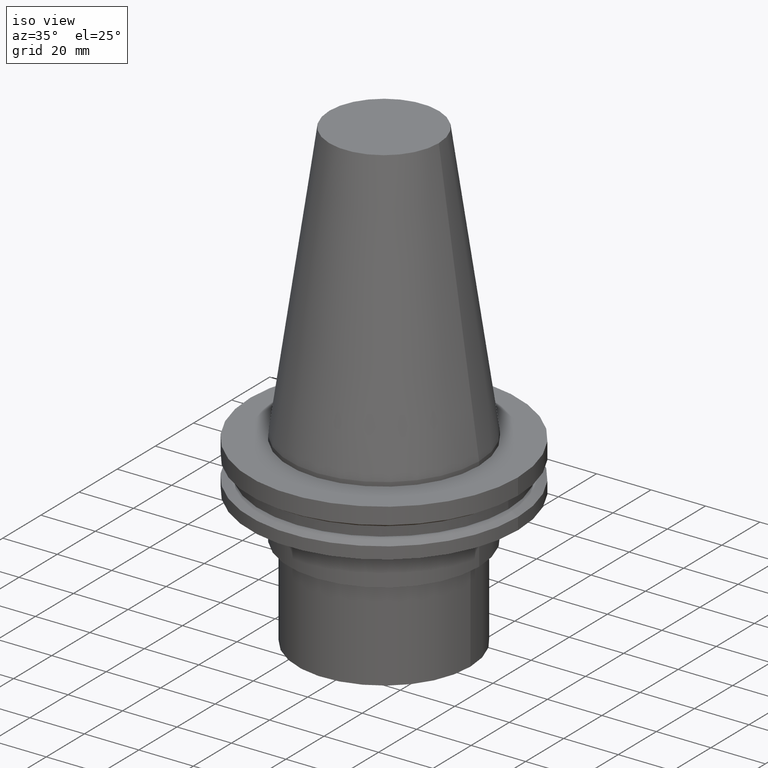
[diagram: clean part render]
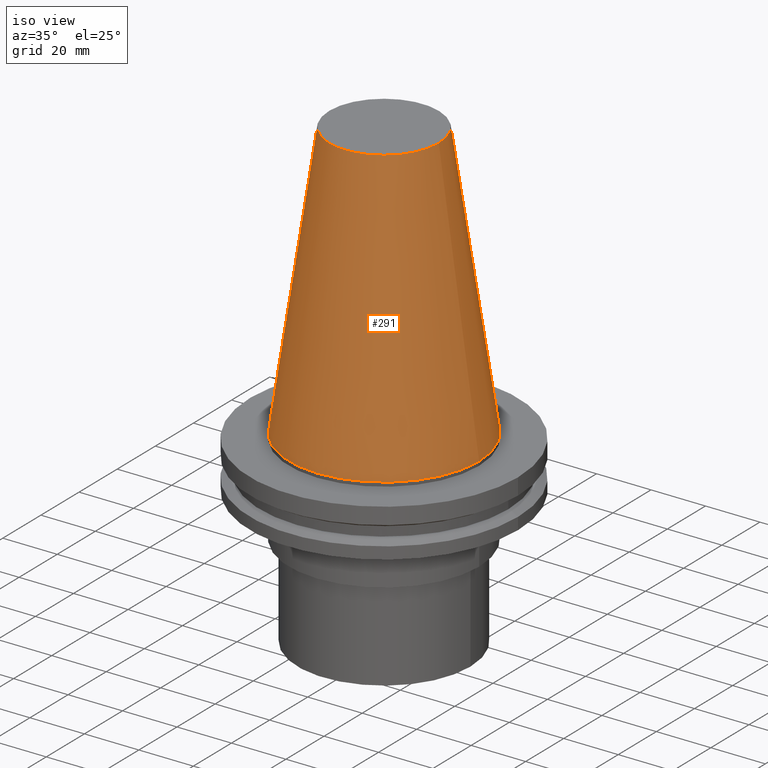
[diagram: same view with one face highlighted and labeled with its STEP entity id]
A machine part, iso view. The second image highlights one B-rep face of the part: STEP entity #291.
In plain terms, the highlighted conical surface has half-angle 8.297 deg.
Its self-contained STEP definition (entity closure, byte-faithful):
#5 = AXIS2_PLACEMENT_3D ( 'NONE', #68, #184, #158 ) ;
#23 = AXIS2_PLACEMENT_3D ( 'NONE', #343, #79, #191 ) ;
#29 = EDGE_CURVE ( 'NONE', #367, #367, #313, .T. ) ;
#68 = CARTESIAN_POINT ( 'NONE',  ( 0.000000000000000000, 0.000000000000000000, 101.5999999999999801 ) ) ;
#69 = FACE_BOUND ( 'NONE', #280, .T. ) ;
#79 = DIRECTION ( 'NONE',  ( -0.000000000000000000, -0.000000000000000000, 1.000000000000000000 ) ) ;
#81 = CIRCLE ( 'NONE', #5, 20.10819343178871321 ) ;
#88 = CONICAL_SURFACE ( 'NONE', #355, 34.92499999999999005, 0.1448138465474119452 ) ;
#103 = DIRECTION ( 'NONE',  ( 0.000000000000000000, 0.000000000000000000, -1.000000000000000000 ) ) ;
#158 = DIRECTION ( 'NONE',  ( 1.000000000000000000, 0.000000000000000000, 0.000000000000000000 ) ) ;
#168 = ORIENTED_EDGE ( 'NONE', *, *, #385, .F. ) ;
#184 = DIRECTION ( 'NONE',  ( -0.000000000000000000, -0.000000000000000000, 1.000000000000000000 ) ) ;
#187 = DIRECTION ( 'NONE',  ( -1.000000000000000000, 0.000000000000000000, 0.000000000000000000 ) ) ;
#189 = CARTESIAN_POINT ( 'NONE',  ( 34.92499999999999005, 0.000000000000000000, 0.000000000000000000 ) ) ;
#191 = DIRECTION ( 'NONE',  ( 1.000000000000000000, 0.000000000000000000, 0.000000000000000000 ) ) ;
#222 = VERTEX_POINT ( 'NONE', #348 ) ;
#250 = CARTESIAN_POINT ( 'NONE',  ( 0.000000000000000000, 0.000000000000000000, 0.000000000000000000 ) ) ;
#280 = EDGE_LOOP ( 'NONE', ( #168 ) ) ;
#291 = ADVANCED_FACE ( 'NONE', ( #69, #303 ), #88, .T. ) ;
#303 = FACE_OUTER_BOUND ( 'NONE', #375, .T. ) ;
#313 = CIRCLE ( 'NONE', #23, 34.92499999999999005 ) ;
#321 = ORIENTED_EDGE ( 'NONE', *, *, #29, .T. ) ;
#343 = CARTESIAN_POINT ( 'NONE',  ( 0.000000000000000000, 0.000000000000000000, 0.000000000000000000 ) ) ;
#348 = CARTESIAN_POINT ( 'NONE',  ( 20.10819343178871321, 0.000000000000000000, 101.5999999999999801 ) ) ;
#355 = AXIS2_PLACEMENT_3D ( 'NONE', #250, #103, #187 ) ;
#367 = VERTEX_POINT ( 'NONE', #189 ) ;
#375 = EDGE_LOOP ( 'NONE', ( #321 ) ) ;
#385 = EDGE_CURVE ( 'NONE', #222, #222, #81, .T. ) ;